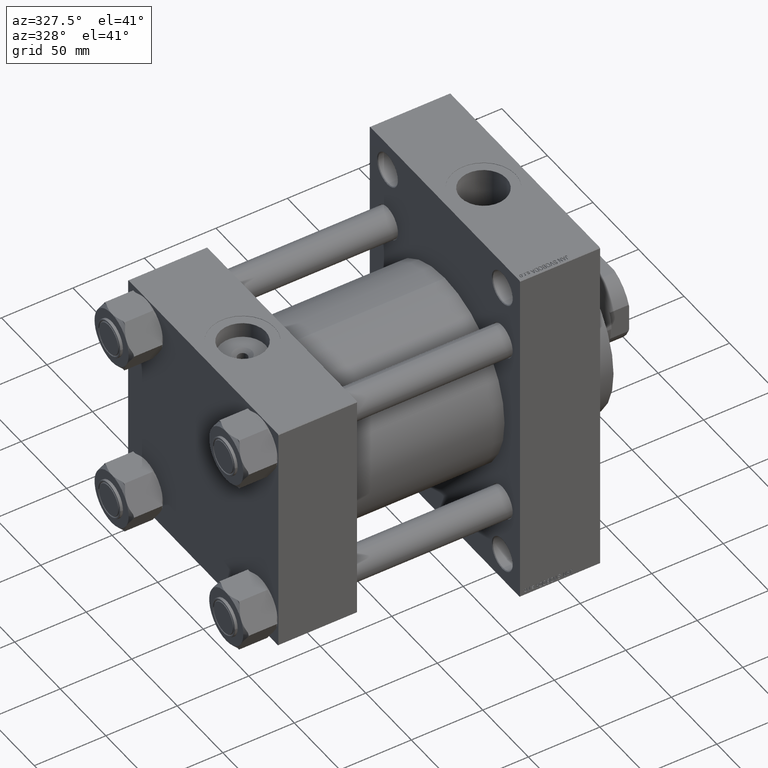
[diagram: clean part render]
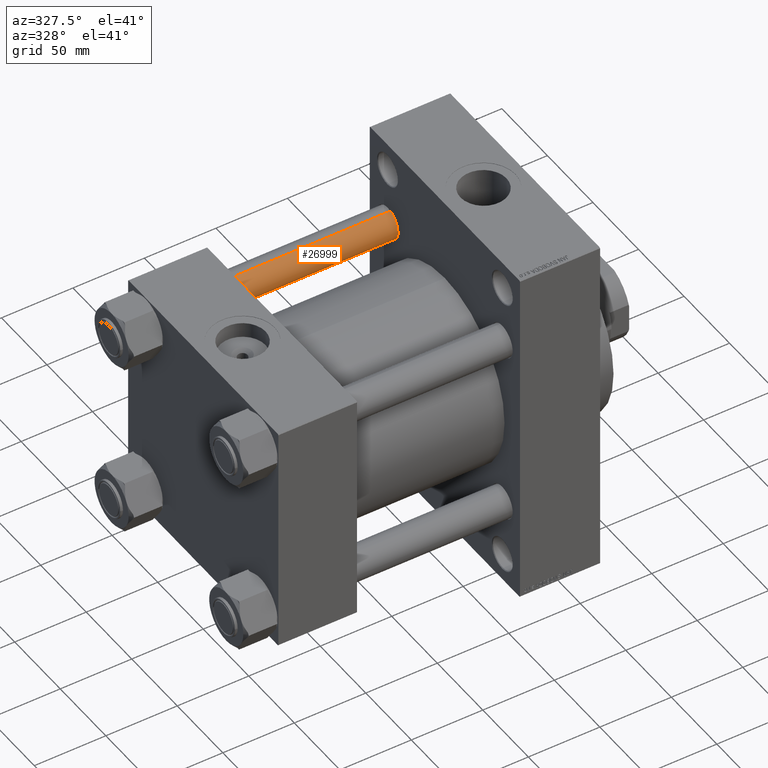
[diagram: same view with one face highlighted and labeled with its STEP entity id]
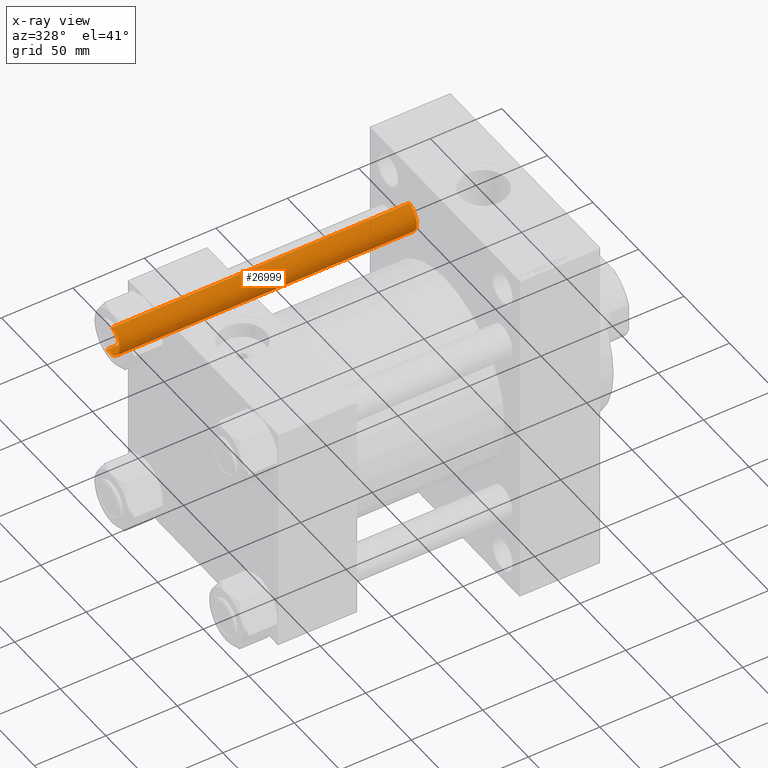
[diagram: x-ray of the same camera — body ghosted, the highlighted face saturated]
A machine part, auxiliary view. The second image highlights one B-rep face of the part: STEP entity #26999.
The next image is the same camera in x-ray: the body ghosted, the highlighted face saturated — about 0% of this face is hidden behind the body in this view.
In plain terms, the highlighted cylindrical surface (edge-blend (fillet) strip) has radius 11 mm, axis along (-1, -0, 0).
Its self-contained STEP definition (entity closure, byte-faithful):
#1297 = DIRECTION ( 'NONE',  ( -1.000000000000000000, 0.000000000000000000, 0.000000000000000000 ) ) ;
#5041 = CYLINDRICAL_SURFACE ( 'NONE', #41218, 11.00000000000000000 ) ;
#5774 = FACE_OUTER_BOUND ( 'NONE', #44086, .T. ) ;
#8872 = CARTESIAN_POINT ( 'NONE',  ( -11.00000000000000000, 0.000000000000000000, 209.0000000000000000 ) ) ;
#10002 = ORIENTED_EDGE ( 'NONE', *, *, #19165, .T. ) ;
#12109 = CIRCLE ( 'NONE', #16919, 11.00000000000000000 ) ;
#14855 = CARTESIAN_POINT ( 'NONE',  ( -11.00000000000000000, 0.000000000000000000, 0.5000000000000004441 ) ) ;
#16528 = ORIENTED_EDGE ( 'NONE', *, *, #24535, .T. ) ;
#16919 = AXIS2_PLACEMENT_3D ( 'NONE', #43043, #24028, #39298 ) ;
#17346 = VERTEX_POINT ( 'NONE', #47105 ) ;
#17841 = LINE ( 'NONE', #33110, #47646 ) ;
#17930 = CIRCLE ( 'NONE', #24305, 11.00000000000000000 ) ;
#19165 = EDGE_CURVE ( 'NONE', #27539, #45116, #27899, .T. ) ;
#20313 = CARTESIAN_POINT ( 'NONE',  ( 0.000000000000000000, 0.000000000000000000, 209.0000000000000000 ) ) ;
#20609 = DIRECTION ( 'NONE',  ( 1.000000000000000000, 0.000000000000000000, 0.000000000000000000 ) ) ;
#20726 = CARTESIAN_POINT ( 'NONE',  ( -11.00000000000000000, 0.000000000000000000, 208.5000000000000000 ) ) ;
#21099 = DIRECTION ( 'NONE',  ( -0.000000000000000000, -0.000000000000000000, -1.000000000000000000 ) ) ;
#24028 = DIRECTION ( 'NONE',  ( 0.000000000000000000, 0.000000000000000000, -1.000000000000000000 ) ) ;
#24141 = DIRECTION ( 'NONE',  ( -0.000000000000000000, -0.000000000000000000, -1.000000000000000000 ) ) ;
#24305 = AXIS2_PLACEMENT_3D ( 'NONE', #40619, #39884, #20609 ) ;
#24535 = EDGE_CURVE ( 'NONE', #45116, #17346, #17930, .T. ) ;
#26231 = VECTOR ( 'NONE', #24141, 1000.000000000000000 ) ;
#26298 = CARTESIAN_POINT ( 'NONE',  ( 11.00000000000000000, 1.347111479062088405E-15, 208.5000000000000000 ) ) ;
#26999 = ADVANCED_FACE ( 'NONE', ( #5774 ), #5041, .T. ) ;
#27539 = VERTEX_POINT ( 'NONE', #20726 ) ;
#27899 = LINE ( 'NONE', #8872, #26231 ) ;
#28584 = ORIENTED_EDGE ( 'NONE', *, *, #30850, .F. ) ;
#30850 = EDGE_CURVE ( 'NONE', #48364, #17346, #17841, .T. ) ;
#33110 = CARTESIAN_POINT ( 'NONE',  ( 11.00000000000000000, 1.347111479062088405E-15, 209.0000000000000000 ) ) ;
#38903 = ORIENTED_EDGE ( 'NONE', *, *, #48514, .T. ) ;
#39298 = DIRECTION ( 'NONE',  ( 1.000000000000000000, 0.000000000000000000, 0.000000000000000000 ) ) ;
#39884 = DIRECTION ( 'NONE',  ( -0.000000000000000000, -0.000000000000000000, 1.000000000000000000 ) ) ;
#40619 = CARTESIAN_POINT ( 'NONE',  ( 0.000000000000000000, 0.000000000000000000, 0.5000000000000004441 ) ) ;
#41218 = AXIS2_PLACEMENT_3D ( 'NONE', #20313, #43579, #1297 ) ;
#43043 = CARTESIAN_POINT ( 'NONE',  ( 0.000000000000000000, 0.000000000000000000, 208.5000000000000000 ) ) ;
#43579 = DIRECTION ( 'NONE',  ( -0.000000000000000000, -0.000000000000000000, -1.000000000000000000 ) ) ;
#44086 = EDGE_LOOP ( 'NONE', ( #28584, #38903, #10002, #16528 ) ) ;
#45116 = VERTEX_POINT ( 'NONE', #14855 ) ;
#47105 = CARTESIAN_POINT ( 'NONE',  ( 11.00000000000000000, 1.347111479062088405E-15, 0.5000000000000004441 ) ) ;
#47646 = VECTOR ( 'NONE', #21099, 1000.000000000000000 ) ;
#48364 = VERTEX_POINT ( 'NONE', #26298 ) ;
#48514 = EDGE_CURVE ( 'NONE', #48364, #27539, #12109, .T. ) ;